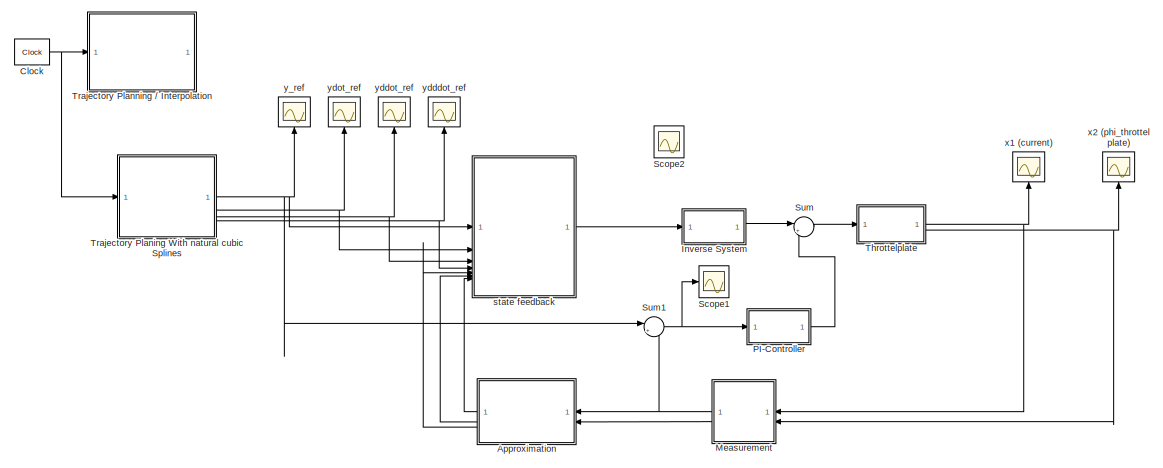
[diagram: root canvas - part 1/2, top center region]
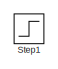
[diagram: root canvas - part 2/2, bottom right region]
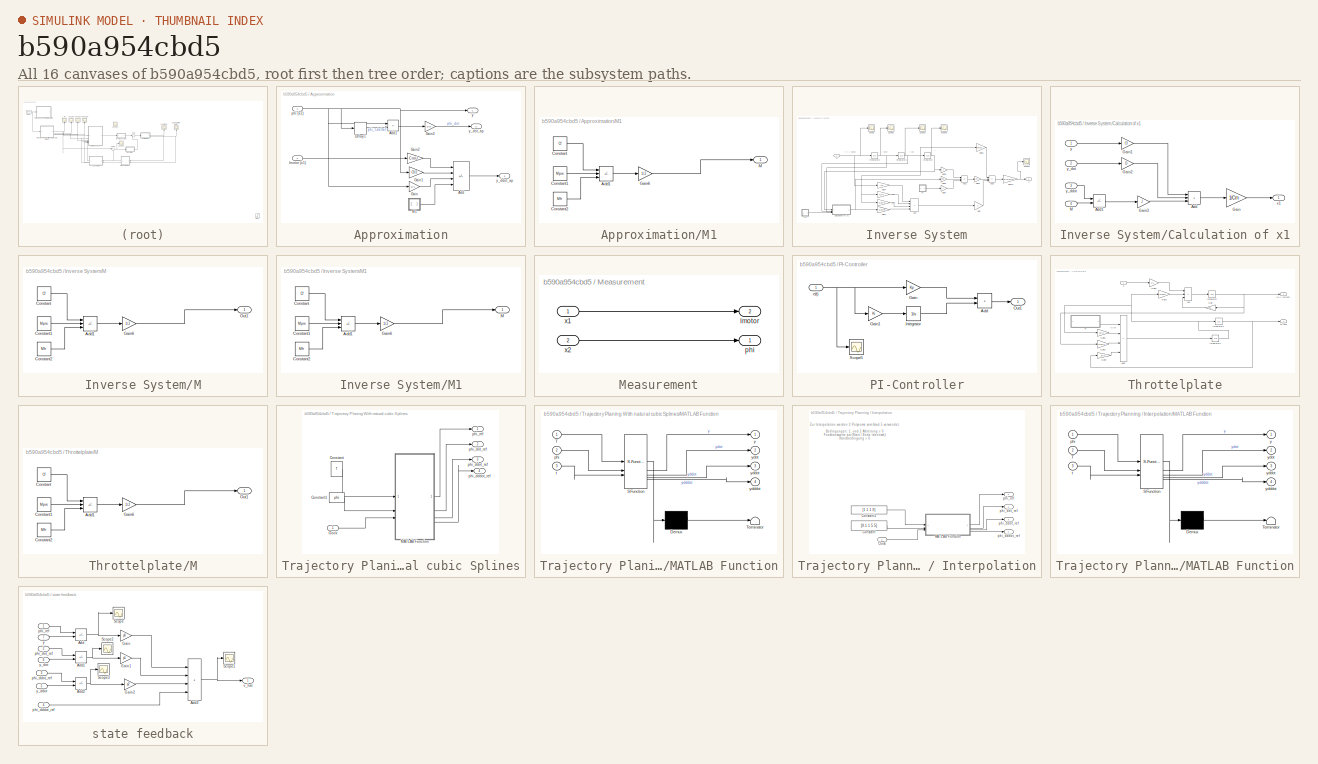
[diagram: thumbnail index - all 16 canvases of the model, root first then tree order]
MODEL slx_b590a954cbd5
KIND model
CONFIG AbsTol = auto
CONFIG EnableMultiTasking = off
CONFIG FixedStep = 0.001
CONFIG InitFcn = clear all\nclc\n\n%% Modell Parameter Drosselklappe\nPhi_LHP = 0;\nR = 2.0;\nCm = 4.19*exp(-3);\nL = 20*exp(-6);\nJ = 1.7*exp(-6);\nCf = 2.2*exp(-4);\nD = 1*exp(-7);\nMfr = 1*exp(-6);\nMpre = 1*exp(-6);\n\n%% Reglerparameter PI-Regler\nKp = 1;\nKi = 0.01;\n\n%% State feedback controller\np0 = 730000;\np1 = 23300;\np2 = 260;\n\n%% Sample time\nts = 0.001\n\n%% Bessel\nbessel_poles = [-0.6573+0.8302i, -0.6573-0.8302i, -0.9047...<+362ch>
CONFIG MaxStep = auto
CONFIG MinStep = auto
CONFIG RelTol = 1e-3
CONFIG SampleTimeConstraint = Unconstrained
CONFIG SolverName = FixedStepAuto
CONFIG StartTime = 0.0
CONFIG StopTime = 20
BLOCK [SubSystem] Approximation
  NameLocation = top
BLOCK [Sum] Approximation/Add
  IconShape = rectangular
  Inputs = +--+
BLOCK [Sum] Approximation/Add1
  IconShape = rectangular
  Inputs = +-
BLOCK [Delay] Approximation/Delay1
  DelayLength = 1
  InputPortMap = u0
  SampleTime = ts
BLOCK [Gain] Approximation/Gain
  Gain = D/J
BLOCK [Gain] Approximation/Gain1
  Gain = Cf/J
BLOCK [Gain] Approximation/Gain2
  Gain = Cm/J
BLOCK [Gain] Approximation/Gain3
  Gain = 1/ts
BLOCK [Inport] Approximation/Imotor (x1)
  Port = 2
BLOCK [SubSystem] Approximation/M1
BLOCK [Sum] Approximation/M1/Add1
  IconShape = rectangular
  Inputs = +--
BLOCK [Constant] Approximation/M1/Constant
  Value = Cf
BLOCK [Constant] Approximation/M1/Constant1
  Value = Mpre
BLOCK [Constant] Approximation/M1/Constant2
  Value = Mfr
BLOCK [Gain] Approximation/M1/Gain6
  Gain = 1/J
BLOCK [Outport] Approximation/M1/M
BLOCK [Inport] Approximation/phi (x2)
BLOCK [Outport] Approximation/y
BLOCK [Outport] Approximation/y_ddot_ap
  Port = 3
BLOCK [Outport] Approximation/y_dot_ap
  Port = 2
BLOCK [Clock] Clock
  DisplayTime = on
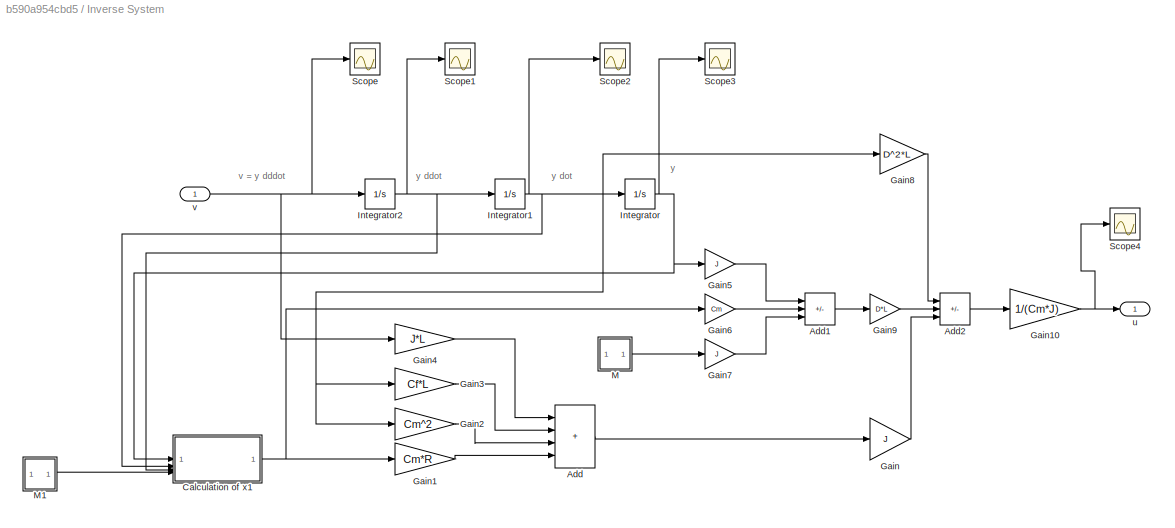
BLOCK [SubSystem] Inverse System
BLOCK [Sum] Inverse System/Add
  IconShape = rectangular
  Inputs = ++++
BLOCK [Sum] Inverse System/Add1
  IconShape = rectangular
  Inputs = -++
BLOCK [Sum] Inverse System/Add2
  IconShape = rectangular
  Inputs = -++
BLOCK [SubSystem] Inverse System/Calculation of x1
BLOCK [Sum] Inverse System/Calculation of x1/Add
  IconShape = rectangular
  Inputs = +++
BLOCK [Sum] Inverse System/Calculation of x1/Add1
  IconShape = rectangular
  Inputs = +-
BLOCK [Gain] Inverse System/Calculation of x1/Gain
  Gain = 1/Cm
BLOCK [Gain] Inverse System/Calculation of x1/Gain1
  Gain = Cf
BLOCK [Gain] Inverse System/Calculation of x1/Gain2
  Gain = D
BLOCK [Gain] Inverse System/Calculation of x1/Gain3
  Gain = J
BLOCK [Inport] Inverse System/Calculation of x1/M
  Port = 4
BLOCK [Outport] Inverse System/Calculation of x1/x1
BLOCK [Inport] Inverse System/Calculation of x1/y
BLOCK [Inport] Inverse System/Calculation of x1/y_ddot
  Port = 3
BLOCK [Inport] Inverse System/Calculation of x1/y_dot
  Port = 2
BLOCK [Gain] Inverse System/Gain
  Gain = J
BLOCK [Gain] Inverse System/Gain1
  Gain = Cm*R
BLOCK [Gain] Inverse System/Gain10
  Gain = 1/(Cm*J)
BLOCK [Gain] Inverse System/Gain2
  Gain = Cm^2
BLOCK [Gain] Inverse System/Gain3
  Gain = Cf*L
BLOCK [Gain] Inverse System/Gain4
  Gain = J*L
BLOCK [Gain] Inverse System/Gain5
  Gain = J
BLOCK [Gain] Inverse System/Gain6
  Gain = Cm
BLOCK [Gain] Inverse System/Gain7
  Gain = J
BLOCK [Gain] Inverse System/Gain8
  Gain = D^2*L
BLOCK [Gain] Inverse System/Gain9
  Gain = D*L
BLOCK [Integrator] Inverse System/Integrator
BLOCK [Integrator] Inverse System/Integrator1
BLOCK [Integrator] Inverse System/Integrator2
BLOCK [SubSystem] Inverse System/M
BLOCK [Sum] Inverse System/M/Add1
  IconShape = rectangular
  Inputs = +--
BLOCK [Constant] Inverse System/M/Constant
  Value = Cf
BLOCK [Constant] Inverse System/M/Constant1
  Value = Mpre
BLOCK [Constant] Inverse System/M/Constant2
  Value = Mfr
BLOCK [Gain] Inverse System/M/Gain6
  Gain = 1/J
BLOCK [Outport] Inverse System/M/Out1
BLOCK [SubSystem] Inverse System/M1
BLOCK [Sum] Inverse System/M1/Add1
  IconShape = rectangular
  Inputs = +--
BLOCK [Constant] Inverse System/M1/Constant
  Value = Cf
BLOCK [Constant] Inverse System/M1/Constant1
  Value = Mpre
BLOCK [Constant] Inverse System/M1/Constant2
  Value = Mfr
BLOCK [Gain] Inverse System/M1/Gain6
  Gain = 1/J
BLOCK [Outport] Inverse System/M1/M
BLOCK [Scope] Inverse System/Scope
  Floating = off
  NumInputPorts = 1
  ScopeSpecificationString = Simulink.scopes.TimeScopeBlockCfg('CurrentConfiguration', extmgr.ConfigurationSet(extmgr.Configuration('Core','General UI',true),extmgr.Configuration('Core','Source UI',true),extmgr.Configuration('Sources','WiredSimulink',true,'DataLoggingVariableName','ScopeData3'),extmgr.Configuration('Visuals','Time Domain',true,'SerializedDisplays',{struct('MinYLimReal','-2.7452','MaxYLimReal','0.72407','YLabe...<+1470ch>
BLOCK [Scope] Inverse System/Scope1
  Floating = off
  NumInputPorts = 1
  ScopeSpecificationString = Simulink.scopes.TimeScopeBlockCfg('CurrentConfiguration', extmgr.ConfigurationSet(extmgr.Configuration('Core','General UI',true),extmgr.Configuration('Core','Source UI',true),extmgr.Configuration('Sources','WiredSimulink',true,'DataLoggingVariableName','ScopeData4'),extmgr.Configuration('Visuals','Time Domain',true,'SerializedDisplays',{struct('MinYLimReal','-1.85764','MaxYLimReal','0.71872','YLab...<+1484ch>
BLOCK [Scope] Inverse System/Scope2
  Floating = off
  NumInputPorts = 1
  ScopeSpecificationString = Simulink.scopes.TimeScopeBlockCfg('CurrentConfiguration', extmgr.ConfigurationSet(extmgr.Configuration('Core','General UI',true),extmgr.Configuration('Core','Source UI',true),extmgr.Configuration('Sources','WiredSimulink',true,'DataLoggingVariableName','ScopeData6'),extmgr.Configuration('Visuals','Time Domain',true,'SerializedDisplays',{struct('MinYLimReal','-0.21622','MaxYLimReal','0.76396','YLab...<+1459ch>
BLOCK [Scope] Inverse System/Scope3
  Floating = off
  NumInputPorts = 1
  ScopeSpecificationString = Simulink.scopes.TimeScopeBlockCfg('CurrentConfiguration', extmgr.ConfigurationSet(extmgr.Configuration('Core','General UI',true),extmgr.Configuration('Core','Source UI',true),extmgr.Configuration('Sources','WiredSimulink',true,'DataLoggingVariableName','ScopeData7'),extmgr.Configuration('Visuals','Time Domain',true,'SerializedDisplays',{struct('MinYLimReal','-0.28946','MaxYLimReal','1.14327','YLab...<+1483ch>
BLOCK [Scope] Inverse System/Scope4
  Floating = off
  NumInputPorts = 1
  ScopeSpecificationString = Simulink.scopes.TimeScopeBlockCfg('CurrentConfiguration', extmgr.ConfigurationSet(extmgr.Configuration('Core','General UI',true),extmgr.Configuration('Core','Source UI',true),extmgr.Configuration('Sources','WiredSimulink',true,'DataLoggingVariableName','ScopeData8'),extmgr.Configuration('Visuals','Time Domain',true),extmgr.Configuration('Tools','Plot Navigation',true),extmgr.Configuration('Tools',...<+40ch>
BLOCK [Outport] Inverse System/u
BLOCK [Inport] Inverse System/v
BLOCK [SubSystem] Measurement
  NameLocation = top
BLOCK [Outport] Measurement/Imotor
  Port = 2
BLOCK [Outport] Measurement/phi
BLOCK [Inport] Measurement/x1
BLOCK [Inport] Measurement/x2
  Port = 2
BLOCK [SubSystem] PI-Controller
BLOCK [Sum] PI-Controller/Add
  IconShape = rectangular
BLOCK [Gain] PI-Controller/Gain
  Gain = Kp
BLOCK [Gain] PI-Controller/Gain1
  Gain = Ki
BLOCK [Integrator] PI-Controller/Integrator
BLOCK [Outport] PI-Controller/Out1
BLOCK [Scope] PI-Controller/Scope5
  Floating = off
  NumInputPorts = 1
  ScopeSpecificationString = Simulink.scopes.TimeScopeBlockCfg('CurrentConfiguration', extmgr.ConfigurationSet(extmgr.Configuration('Core','General UI',true),extmgr.Configuration('Core','Source UI',true),extmgr.Configuration('Sources','WiredSimulink',true,'DataLoggingVariableName','ScopeData9'),extmgr.Configuration('Visuals','Time Domain',true,'SerializedDisplays',{struct('MinYLimReal','-0.12437','MaxYLimReal','0.54385','YLab...<+1504ch>
BLOCK [Inport] PI-Controller/e(t)
BLOCK [Scope] Scope1
  Floating = off
  NumInputPorts = 1
  ScopeSpecificationString = Simulink.scopes.TimeScopeBlockCfg('CurrentConfiguration', extmgr.ConfigurationSet(extmgr.Configuration('Core','General UI',true),extmgr.Configuration('Core','Source UI',true),extmgr.Configuration('Sources','WiredSimulink',true,'DataLoggingVariableName','ScopeData9'),extmgr.Configuration('Visuals','Time Domain',true,'SerializedDisplays',{struct('MinYLimReal','-0.03142','MaxYLimReal','0.00419','YLab...<+1477ch>
BLOCK [Scope] Scope2
  Floating = off
  NumInputPorts = 1
  ScopeSpecificationString = Simulink.scopes.TimeScopeBlockCfg('CurrentConfiguration', extmgr.ConfigurationSet(extmgr.Configuration('Core','General UI',true),extmgr.Configuration('Core','Source UI',true),extmgr.Configuration('Sources','WiredSimulink',true,'DataLoggingVariableName','ScopeData2'),extmgr.Configuration('Visuals','Time Domain',true,'SerializedDisplays',{struct('MinYLimReal','-17386770672116551808396903246761236250...<+3920ch>
BLOCK [Step] Step1
  SampleTime = 0
BLOCK [Sum] Sum
  Inputs = |++
BLOCK [Sum] Sum1
  Inputs = |+-
BLOCK [SubSystem] Throttelplate
BLOCK [Sum] Throttelplate/Add
  IconShape = rectangular
  Inputs = +--
BLOCK [Sum] Throttelplate/Add5
  IconShape = rectangular
  Inputs = +-+-
BLOCK [Gain] Throttelplate/Gain
  Gain = R/L
  NameLocation = top
BLOCK [Gain] Throttelplate/Gain1
  Gain = Cm/L
BLOCK [Gain] Throttelplate/Gain2
  Gain = 1/L
BLOCK [Gain] Throttelplate/Gain3
  Gain = Cm/J
BLOCK [Gain] Throttelplate/Gain4
  Gain = Cf/J
BLOCK [Gain] Throttelplate/Gain5
  Gain = D/J
BLOCK [Integrator] Throttelplate/Integrator
BLOCK [Integrator] Throttelplate/Integrator1
BLOCK [Integrator] Throttelplate/Integrator2
BLOCK [SubSystem] Throttelplate/M
BLOCK [Sum] Throttelplate/M/Add1
  IconShape = rectangular
  Inputs = +--
BLOCK [Constant] Throttelplate/M/Constant
  Value = Cf
BLOCK [Constant] Throttelplate/M/Constant1
  Value = Mpre
BLOCK [Constant] Throttelplate/M/Constant2
  Value = Mfr
BLOCK [Gain] Throttelplate/M/Gain6
  Gain = 1/J
BLOCK [Outport] Throttelplate/M/Out1
BLOCK [Inport] Throttelplate/u
BLOCK [Outport] Throttelplate/x1 (I current)
BLOCK [Outport] Throttelplate/x2 (phi)
  Port = 2
BLOCK [SubSystem] Trajectory Planing With natural cubic Splines
BLOCK [Inport] Trajectory Planing With natural cubic Splines/Clock
BLOCK [Constant] Trajectory Planing With natural cubic Splines/Constant
  Value = T
BLOCK [Constant] Trajectory Planing With natural cubic Splines/Constant1
  Value = phi
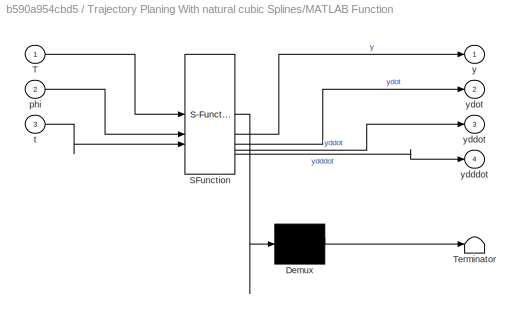
BLOCK [SubSystem] Trajectory Planing With natural cubic Splines/MATLAB Function
  ErrorFcn = Stateflow.Translate.translate
  PermitHierarchicalResolution = ExplicitOnly
  SFBlockType = MATLAB Function
  TreatAsAtomicUnit = on
BLOCK [Demux] Trajectory Planing With natural cubic Splines/MATLAB Function/ Demux 
  Outputs = 1
BLOCK [S-Function] Trajectory Planing With natural cubic Splines/MATLAB Function/ SFunction 
  EnableBusSupport = on
  FunctionName = sf_sfun
  PortCounts = [3 5]
  SFcnIsStateOwnerBlock = off
  SFunctionDeploymentMode = off
  Tag = Stateflow S-Function 2
BLOCK [Terminator] Trajectory Planing With natural cubic Splines/MATLAB Function/ Terminator 
BLOCK [Inport] Trajectory Planing With natural cubic Splines/MATLAB Function/T
BLOCK [Inport] Trajectory Planing With natural cubic Splines/MATLAB Function/phi
  Port = 2
BLOCK [Inport] Trajectory Planing With natural cubic Splines/MATLAB Function/t
  Port = 3
BLOCK [Outport] Trajectory Planing With natural cubic Splines/MATLAB Function/y
BLOCK [Outport] Trajectory Planing With natural cubic Splines/MATLAB Function/ydddot
  Port = 4
BLOCK [Outport] Trajectory Planing With natural cubic Splines/MATLAB Function/yddot
  Port = 3
BLOCK [Outport] Trajectory Planing With natural cubic Splines/MATLAB Function/ydot
  Port = 2
BLOCK [Outport] Trajectory Planing With natural cubic Splines/phi_dddot_ref
  Port = 4
BLOCK [Outport] Trajectory Planing With natural cubic Splines/phi_ddot_ref
  Port = 3
BLOCK [Outport] Trajectory Planing With natural cubic Splines/phi_dot_ref
  Port = 2
BLOCK [Outport] Trajectory Planing With natural cubic Splines/phi_ref
BLOCK [SubSystem] Trajectory Planning // Interpolation
BLOCK [Inport] Trajectory Planning // Interpolation/Clock
BLOCK [Constant] Trajectory Planning // Interpolation/Constant
  Value = [0.1 1 5 5]
  VectorParams1D = off
BLOCK [Constant] Trajectory Planning // Interpolation/Constant1
  Value = [1 1 1 0]
BLOCK [SubSystem] Trajectory Planning // Interpolation/MATLAB Function
  ErrorFcn = Stateflow.Translate.translate
  PermitHierarchicalResolution = ExplicitOnly
  SFBlockType = MATLAB Function
  TreatAsAtomicUnit = on
BLOCK [Demux] Trajectory Planning // Interpolation/MATLAB Function/ Demux 
  Outputs = 1
BLOCK [S-Function] Trajectory Planning // Interpolation/MATLAB Function/ SFunction 
  EnableBusSupport = on
  FunctionName = sf_sfun
  PortCounts = [3 5]
  SFcnIsStateOwnerBlock = off
  SFunctionDeploymentMode = off
  Tag = Stateflow S-Function 1
BLOCK [Terminator] Trajectory Planning // Interpolation/MATLAB Function/ Terminator 
BLOCK [Inport] Trajectory Planning // Interpolation/MATLAB Function/T
  Port = 2
BLOCK [Inport] Trajectory Planning // Interpolation/MATLAB Function/phi
BLOCK [Inport] Trajectory Planning // Interpolation/MATLAB Function/t
  Port = 3
BLOCK [Outport] Trajectory Planning // Interpolation/MATLAB Function/y
BLOCK [Outport] Trajectory Planning // Interpolation/MATLAB Function/ydddot
  Port = 4
BLOCK [Outport] Trajectory Planning // Interpolation/MATLAB Function/yddot
  Port = 3
BLOCK [Outport] Trajectory Planning // Interpolation/MATLAB Function/ydot
  Port = 2
BLOCK [Outport] Trajectory Planning // Interpolation/phi_dddot_ref
  Port = 4
BLOCK [Outport] Trajectory Planning // Interpolation/phi_ddot_ref
  Port = 3
BLOCK [Outport] Trajectory Planning // Interpolation/phi_dot_ref
  Port = 2
BLOCK [Outport] Trajectory Planning // Interpolation/phi_ref
BLOCK [SubSystem] state feedback
BLOCK [Sum] state feedback/Add
  IconShape = rectangular
  Inputs = +-
BLOCK [Sum] state feedback/Add1
  IconShape = rectangular
  Inputs = +-
BLOCK [Sum] state feedback/Add2
  IconShape = rectangular
  Inputs = +-
BLOCK [Sum] state feedback/Add3
  IconShape = rectangular
  Inputs = ++++
BLOCK [Gain] state feedback/Gain
  Gain = p0
BLOCK [Gain] state feedback/Gain1
  Gain = p1
BLOCK [Gain] state feedback/Gain2
  Gain = p2
BLOCK [Scope] state feedback/Scope
  Floating = off
  NumInputPorts = 1
  ScopeSpecificationString = Simulink.scopes.TimeScopeBlockCfg('CurrentConfiguration', extmgr.ConfigurationSet(extmgr.Configuration('Core','General UI',true),extmgr.Configuration('Core','Source UI',true),extmgr.Configuration('Sources','WiredSimulink',true,'DataLoggingVariableName','ScopeData2'),extmgr.Configuration('Visuals','Time Domain',true,'SerializedDisplays',{struct('MinYLimReal','-49124189241910054261507170251411901395...<+3899ch>
BLOCK [Scope] state feedback/Scope1
  Floating = off
  NumInputPorts = 1
  ScopeSpecificationString = Simulink.scopes.TimeScopeBlockCfg('CurrentConfiguration', extmgr.ConfigurationSet(extmgr.Configuration('Core','General UI',true),extmgr.Configuration('Core','Source UI',true),extmgr.Configuration('Sources','WiredSimulink',true,'DataLoggingVariableName','ScopeData1'),extmgr.Configuration('Visuals','Time Domain',true,'SerializedDisplays',{struct('MinYLimReal','-10022.30048','MaxYLimReal','10022.3004...<+1571ch>
BLOCK [Scope] state feedback/Scope2
  Floating = off
  NumInputPorts = 1
  ScopeSpecificationString = Simulink.scopes.TimeScopeBlockCfg('CurrentConfiguration', extmgr.ConfigurationSet(extmgr.Configuration('Core','General UI',true),extmgr.Configuration('Core','Source UI',true),extmgr.Configuration('Sources','WiredSimulink',true,'DataLoggingVariableName','ScopeData3'),extmgr.Configuration('Visuals','Time Domain',true,'SerializedDisplays',{struct('MinYLimReal','-13753792976945061891137107062932247175...<+3870ch>
BLOCK [Scope] state feedback/Scope3
  Floating = off
  NumInputPorts = 1
  ScopeSpecificationString = Simulink.scopes.TimeScopeBlockCfg('CurrentConfiguration', extmgr.ConfigurationSet(extmgr.Configuration('Core','General UI',true),extmgr.Configuration('Core','Source UI',true),extmgr.Configuration('Sources','WiredSimulink',true,'DataLoggingVariableName','ScopeData4'),extmgr.Configuration('Visuals','Time Domain',true,'SerializedDisplays',{struct('MinYLimReal','-9.7587','MaxYLimReal','3.96997','YLabe...<+1510ch>
BLOCK [Inport] state feedback/phi_dddot_ref
  Port = 4
BLOCK [Inport] state feedback/phi_ddot_ref
  Port = 3
BLOCK [Inport] state feedback/phi_dot_ref
  Port = 2
BLOCK [Inport] state feedback/phi_ref
BLOCK [Outport] state feedback/v_hat
BLOCK [Inport] state feedback/y
  Port = 7
BLOCK [Inport] state feedback/y_ddot
  Port = 5
BLOCK [Inport] state feedback/y_dot
  Port = 6
BLOCK [Scope] x1 (current)
  Floating = off
  NameLocation = top
  NumInputPorts = 1
  ScopeSpecificationString = Simulink.scopes.TimeScopeBlockCfg('CurrentConfiguration', extmgr.ConfigurationSet(extmgr.Configuration('Core','General UI',true),extmgr.Configuration('Core','Source UI',true),extmgr.Configuration('Sources','WiredSimulink',true,'DataLoggingVariableName','ScopeData1'),extmgr.Configuration('Visuals','Time Domain',true,'SerializedDisplays',{struct('MinYLimReal','-1.21708','MaxYLimReal','1.07086','YLab...<+1534ch>
BLOCK [Scope] x2 (phi_throttel plate)
  Floating = off
  NameLocation = top
  NumInputPorts = 1
  ScopeSpecificationString = Simulink.scopes.TimeScopeBlockCfg('CurrentConfiguration', extmgr.ConfigurationSet(extmgr.Configuration('Core','General UI',true),extmgr.Configuration('Core','Source UI',true),extmgr.Configuration('Sources','WiredSimulink',true),extmgr.Configuration('Visuals','Time Domain',true,'SerializedDisplays',{struct('MinYLimReal','-0.13778','MaxYLimReal','1.12932','YLabelReal','','MinYLimMag','0.00000','MaxY...<+1495ch>
BLOCK [Scope] y_ref
  Floating = off
  NameLocation = top
  NumInputPorts = 1
  ScopeSpecificationString = Simulink.scopes.TimeScopeBlockCfg('CurrentConfiguration', extmgr.ConfigurationSet(extmgr.Configuration('Core','General UI',true),extmgr.Configuration('Core','Source UI',true),extmgr.Configuration('Sources','WiredSimulink',true,'DataLoggingVariableName','ScopeData12'),extmgr.Configuration('Visuals','Time Domain',true,'SerializedDisplays',{struct('MinYLimReal','-0.12488','MaxYLimReal','1.12388','YLa...<+1602ch>
BLOCK [Scope] ydddot_ref
  Floating = off
  NameLocation = top
  NumInputPorts = 1
  ScopeSpecificationString = Simulink.scopes.TimeScopeBlockCfg('CurrentConfiguration', extmgr.ConfigurationSet(extmgr.Configuration('Core','General UI',true),extmgr.Configuration('Core','Source UI',true),extmgr.Configuration('Sources','WiredSimulink',true,'DataLoggingVariableName','ScopeData15'),extmgr.Configuration('Visuals','Time Domain',true,'SerializedDisplays',{struct('MinYLimReal','-3.98314','MaxYLimReal','1.46494','YLa...<+1607ch>
BLOCK [Scope] yddot_ref
  Floating = off
  NameLocation = top
  NumInputPorts = 1
  ScopeSpecificationString = Simulink.scopes.TimeScopeBlockCfg('CurrentConfiguration', extmgr.ConfigurationSet(extmgr.Configuration('Core','General UI',true),extmgr.Configuration('Core','Source UI',true),extmgr.Configuration('Sources','WiredSimulink',true,'DataLoggingVariableName','ScopeData14'),extmgr.Configuration('Visuals','Time Domain',true,'SerializedDisplays',{struct('MinYLimReal','-1.67113','MaxYLimReal','3.09344','YLa...<+1500ch>
BLOCK [Scope] ydot_ref
  Floating = off
  NameLocation = top
  NumInputPorts = 1
  ScopeSpecificationString = Simulink.scopes.TimeScopeBlockCfg('CurrentConfiguration', extmgr.ConfigurationSet(extmgr.Configuration('Core','General UI',true),extmgr.Configuration('Core','Source UI',true),extmgr.Configuration('Sources','WiredSimulink',true,'DataLoggingVariableName','ScopeData11'),extmgr.Configuration('Visuals','Time Domain',true,'SerializedDisplays',{struct('MinYLimReal','-0.41494','MaxYLimReal','0.29506','YLa...<+1570ch>
ANNOTATION Inverse System: v = y dddot
ANNOTATION Inverse System: y
ANNOTATION Inverse System: y ddot
ANNOTATION Inverse System: y dot
ANNOTATION Throttelplate: x3 dot
ANNOTATION Trajectory Planning // Interpolation: Zur Interpolation werden 3 Polynome vom Grad 5 verwendet. Bedingungen: 1. und 2 Ableitung = 0 Funktionswerte am (Start / Ende identisch) Randbedingung = 0 phi 0: Start wert phi 1: 1. Punkt phi 2: 2. Punkt Endpunkt = Startpunkt Es können belibig viele Punkte mit Winkel + Zeit bis der Winkel erreicht wird im Array vorgegeben werden. Zwischen den Punkten wird mit einem Polynom 5. Ordnung interpoliert
LINE Approximation/Add1:1 -> Approximation/Gain3:1
LINE Approximation/Add:1 -> Approximation/y_ddot_ap:1
LINE Approximation/Delay1:1 -> Approximation/Add1:2
LINE Approximation/Gain1:1 -> Approximation/Add:2
LINE Approximation/Gain2:1 -> Approximation/Add:1
LINE Approximation/Gain3:1 -> Approximation/y_dot_ap:1
LINE Approximation/Gain:1 -> Approximation/Add:3
LINE Approximation/Imotor (x1):1 -> Approximation/Gain2:1
LINE Approximation/M1/Add1:1 -> Approximation/M1/Gain6:1
LINE Approximation/M1/Constant1:1 -> Approximation/M1/Add1:2
LINE Approximation/M1/Constant2:1 -> Approximation/M1/Add1:3
LINE Approximation/M1/Constant:1 -> Approximation/M1/Add1:1
LINE Approximation/M1/Gain6:1 -> Approximation/M1/M:1
LINE Approximation/M1:1 -> Approximation/Add:4
NET Approximation/phi (x2):1 -> Approximation/Add1:1, Approximation/Delay1:1, Approximation/Gain1:1, Approximation/Gain:1, Approximation/y:1
LINE Approximation:1 -> state feedback:7
LINE Approximation:2 -> state feedback:6
LINE Approximation:3 -> state feedback:5
NET Clock:1 -> Trajectory Planing With natural cubic Splines:1, Trajectory Planning // Interpolation:1
LINE Inverse System/Add1:1 -> Inverse System/Gain9:1
LINE Inverse System/Add2:1 -> Inverse System/Gain10:1
LINE Inverse System/Add:1 -> Inverse System/Gain:1
LINE Inverse System/Calculation of x1/Add1:1 -> Inverse System/Calculation of x1/Gain3:1
LINE Inverse System/Calculation of x1/Add:1 -> Inverse System/Calculation of x1/Gain:1
LINE Inverse System/Calculation of x1/Gain1:1 -> Inverse System/Calculation of x1/Add:1
LINE Inverse System/Calculation of x1/Gain2:1 -> Inverse System/Calculation of x1/Add:2
LINE Inverse System/Calculation of x1/Gain3:1 -> Inverse System/Calculation of x1/Add:3
LINE Inverse System/Calculation of x1/Gain:1 -> Inverse System/Calculation of x1/x1:1
LINE Inverse System/Calculation of x1/M:1 -> Inverse System/Calculation of x1/Add1:2
LINE Inverse System/Calculation of x1/y:1 -> Inverse System/Calculation of x1/Gain1:1
LINE Inverse System/Calculation of x1/y_ddot:1 -> Inverse System/Calculation of x1/Add1:1
LINE Inverse System/Calculation of x1/y_dot:1 -> Inverse System/Calculation of x1/Gain2:1
NET Inverse System/Calculation of x1:1 -> Inverse System/Gain1:1, Inverse System/Gain6:1
NET Inverse System/Gain10:1 -> Inverse System/Scope4:1, Inverse System/u:1
LINE Inverse System/Gain1:1 -> Inverse System/Add:4
LINE Inverse System/Gain2:1 -> Inverse System/Add:3
LINE Inverse System/Gain3:1 -> Inverse System/Add:2
LINE Inverse System/Gain4:1 -> Inverse System/Add:1
LINE Inverse System/Gain5:1 -> Inverse System/Add1:1
LINE Inverse System/Gain6:1 -> Inverse System/Add1:2
LINE Inverse System/Gain7:1 -> Inverse System/Add1:3
LINE Inverse System/Gain8:1 -> Inverse System/Add2:1
LINE Inverse System/Gain9:1 -> Inverse System/Add2:2
LINE Inverse System/Gain:1 -> Inverse System/Add2:3
NET Inverse System/Integrator1:1 -> Inverse System/Calculation of x1:2, Inverse System/Gain2:1, Inverse System/Gain3:1, Inverse System/Gain8:1, Inverse System/Integrator:1, Inverse System/Scope2:1
NET Inverse System/Integrator2:1 -> Inverse System/Calculation of x1:3, Inverse System/Integrator1:1, Inverse System/Scope1:1
NET Inverse System/Integrator:1 -> Inverse System/Calculation of x1:1, Inverse System/Gain5:1, Inverse System/Scope3:1
LINE Inverse System/M/Add1:1 -> Inverse System/M/Gain6:1
LINE Inverse System/M/Constant1:1 -> Inverse System/M/Add1:2
LINE Inverse System/M/Constant2:1 -> Inverse System/M/Add1:3
LINE Inverse System/M/Constant:1 -> Inverse System/M/Add1:1
LINE Inverse System/M/Gain6:1 -> Inverse System/M/Out1:1
LINE Inverse System/M1/Add1:1 -> Inverse System/M1/Gain6:1
LINE Inverse System/M1/Constant1:1 -> Inverse System/M1/Add1:2
LINE Inverse System/M1/Constant2:1 -> Inverse System/M1/Add1:3
LINE Inverse System/M1/Constant:1 -> Inverse System/M1/Add1:1
LINE Inverse System/M1/Gain6:1 -> Inverse System/M1/M:1
LINE Inverse System/M1:1 -> Inverse System/Calculation of x1:4
LINE Inverse System/M:1 -> Inverse System/Gain7:1
NET Inverse System/v:1 -> Inverse System/Gain4:1, Inverse System/Integrator2:1, Inverse System/Scope:1
LINE Inverse System:1 -> Sum:1
LINE Measurement/x1:1 -> Measurement/Imotor:1
LINE Measurement/x2:1 -> Measurement/phi:1
NET Measurement:1 -> Approximation:1, Sum1:2
LINE Measurement:2 -> Approximation:2
LINE PI-Controller/Add:1 -> PI-Controller/Out1:1
LINE PI-Controller/Gain1:1 -> PI-Controller/Integrator:1
LINE PI-Controller/Gain:1 -> PI-Controller/Add:1
LINE PI-Controller/Integrator:1 -> PI-Controller/Add:2
NET PI-Controller/e(t):1 -> PI-Controller/Gain1:1, PI-Controller/Gain:1, PI-Controller/Scope5:1
LINE PI-Controller:1 -> Sum:2
NET Sum1:1 -> PI-Controller:1, Scope1:1
LINE Sum:1 -> Throttelplate:1
LINE Throttelplate/Add5:1 -> Throttelplate/Integrator2:1
LINE Throttelplate/Add:1 -> Throttelplate/Integrator:1
LINE Throttelplate/Gain1:1 -> Throttelplate/Add:2
LINE Throttelplate/Gain2:1 -> Throttelplate/Add:1
LINE Throttelplate/Gain3:1 -> Throttelplate/Add5:3
LINE Throttelplate/Gain4:1 -> Throttelplate/Add5:4
LINE Throttelplate/Gain5:1 -> Throttelplate/Add5:2
LINE Throttelplate/Gain:1 -> Throttelplate/Add:3
NET Throttelplate/Integrator1:1 -> Throttelplate/Gain4:1, Throttelplate/x2 (phi):1
NET Throttelplate/Integrator2:1 -> Throttelplate/Gain1:1, Throttelplate/Gain5:1, Throttelplate/Integrator1:1
NET Throttelplate/Integrator:1 -> Throttelplate/Gain3:1, Throttelplate/Gain:1, Throttelplate/x1 (I current):1
LINE Throttelplate/M/Add1:1 -> Throttelplate/M/Gain6:1
LINE Throttelplate/M/Constant1:1 -> Throttelplate/M/Add1:2
LINE Throttelplate/M/Constant2:1 -> Throttelplate/M/Add1:3
LINE Throttelplate/M/Constant:1 -> Throttelplate/M/Add1:1
LINE Throttelplate/M/Gain6:1 -> Throttelplate/M/Out1:1
LINE Throttelplate/M:1 -> Throttelplate/Add5:1
LINE Throttelplate/u:1 -> Throttelplate/Gain2:1
NET Throttelplate:1 -> Measurement:1, x1 (current):1
NET Throttelplate:2 -> Measurement:2, x2 (phi_throttel plate):1
LINE Trajectory Planing With natural cubic Splines/Clock:1 -> Trajectory Planing With natural cubic Splines/MATLAB Function:3
LINE Trajectory Planing With natural cubic Splines/Constant1:1 -> Trajectory Planing With natural cubic Splines/MATLAB Function:2
LINE Trajectory Planing With natural cubic Splines/Constant:1 -> Trajectory Planing With natural cubic Splines/MATLAB Function:1
LINE Trajectory Planing With natural cubic Splines/MATLAB Function:1 -> Trajectory Planing With natural cubic Splines/phi_ref:1
LINE Trajectory Planing With natural cubic Splines/MATLAB Function:2 -> Trajectory Planing With natural cubic Splines/phi_dot_ref:1
LINE Trajectory Planing With natural cubic Splines/MATLAB Function:3 -> Trajectory Planing With natural cubic Splines/phi_ddot_ref:1
LINE Trajectory Planing With natural cubic Splines/MATLAB Function:4 -> Trajectory Planing With natural cubic Splines/phi_dddot_ref:1
NET Trajectory Planing With natural cubic Splines:1 -> Sum1:1, state feedback:1, y_ref:1
NET Trajectory Planing With natural cubic Splines:2 -> state feedback:2, ydot_ref:1
NET Trajectory Planing With natural cubic Splines:3 -> state feedback:3, yddot_ref:1
NET Trajectory Planing With natural cubic Splines:4 -> state feedback:4, ydddot_ref:1
LINE Trajectory Planning // Interpolation/Clock:1 -> Trajectory Planning // Interpolation/MATLAB Function:3
LINE Trajectory Planning // Interpolation/Constant1:1 -> Trajectory Planning // Interpolation/MATLAB Function:1
LINE Trajectory Planning // Interpolation/Constant:1 -> Trajectory Planning // Interpolation/MATLAB Function:2
LINE Trajectory Planning // Interpolation/MATLAB Function:1 -> Trajectory Planning // Interpolation/phi_ref:1
LINE Trajectory Planning // Interpolation/MATLAB Function:2 -> Trajectory Planning // Interpolation/phi_dot_ref:1
LINE Trajectory Planning // Interpolation/MATLAB Function:3 -> Trajectory Planning // Interpolation/phi_ddot_ref:1
LINE Trajectory Planning // Interpolation/MATLAB Function:4 -> Trajectory Planning // Interpolation/phi_dddot_ref:1
NET state feedback/Add1:1 -> state feedback/Gain1:1, state feedback/Scope2:1
NET state feedback/Add2:1 -> state feedback/Gain2:1, state feedback/Scope3:1
NET state feedback/Add3:1 -> state feedback/Scope1:1, state feedback/v_hat:1
NET state feedback/Add:1 -> state feedback/Gain:1, state feedback/Scope:1
LINE state feedback/Gain1:1 -> state feedback/Add3:2
LINE state feedback/Gain2:1 -> state feedback/Add3:3
LINE state feedback/Gain:1 -> state feedback/Add3:1
LINE state feedback/phi_dddot_ref:1 -> state feedback/Add3:4
LINE state feedback/phi_ddot_ref:1 -> state feedback/Add2:1
LINE state feedback/phi_dot_ref:1 -> state feedback/Add1:1
LINE state feedback/phi_ref:1 -> state feedback/Add:1
LINE state feedback/y:1 -> state feedback/Add:2
LINE state feedback/y_ddot:1 -> state feedback/Add2:2
LINE state feedback/y_dot:1 -> state feedback/Add1:2
LINE state feedback:1 -> Inverse System:1
note: NET lines group one-source signal fan-out (src -> all destinations, sorted); 1:1 wires keep LINE
CHART Trajectory Planning // Interpolation/MATLAB Function states=1 transitions=1
  STATE_LABEL 'eML_blk_kernel()'
  STATE_LABEL 'SCRIPT:\nfunction [y, ydot, yddot, ydddot] = fcn(phi, T, t)\n   \n    % Gesamtzeit aller Intervalle\n    total_duration = sum(T);\n    \n    % Modulo-Operation, um t zyklisch zu machen\n    t_mod = mod(t, total_duration);\n\n    t_start = 0; % Init start time\n    \n    % Durchlaufe alle Intervalle\n    for i = 1:length(T)\n        % Bestimme das aktuelle Intervall\n        t_end = t_start + T(i);\n        \n    ...<+1506ch>'
CHART Trajectory Planing With natural cubic Splines/MATLAB Function states=1 transitions=1
  STATE_LABEL 'eML_blk_kernel()'
  STATE_LABEL 'SCRIPT:\nfunction [y, ydot, yddot, ydddot] = fcn(T, phi, t)\n    \n    t_mod = mod(t, max(T));\n    % Erstellen der spline-Struktur\n    pp = spline(T, phi);\n\n    pp_coder = create_compatible_pp(pp);\n    \n    % Bestimmen des Funktionswertes zum Zeitpunkt t (bzw. t_mod)\n    y = ppval(pp_coder, t_mod);\n\n    % 1. Ableitung \n    d_pp = compute_derivative_pp(pp);\n    ydot = ppval(d_pp, t_mod);\n    % 2. Able...<+1042ch>'
CHART  states=0 transitions=0
CHART  states=0 transitions=0
